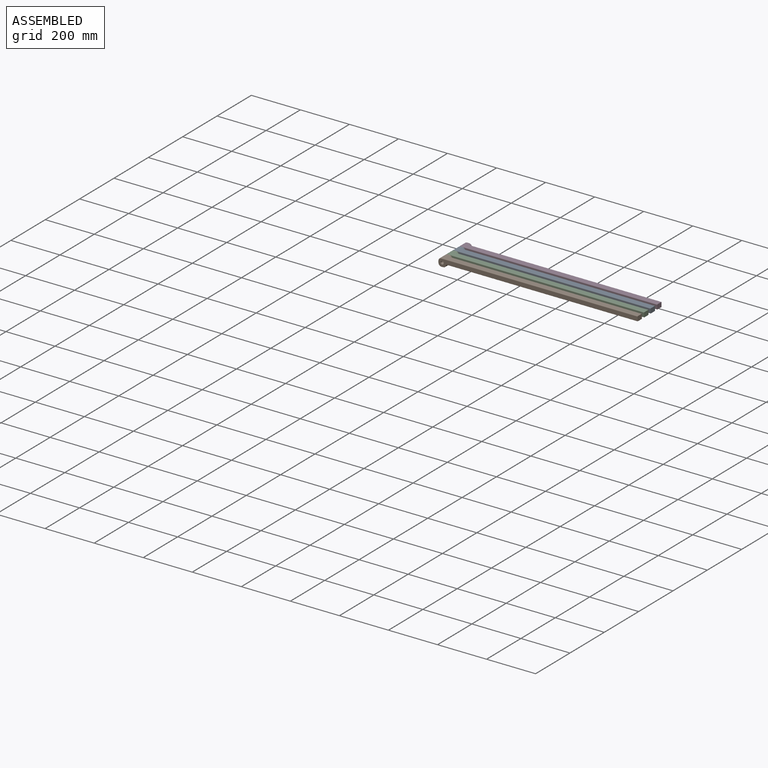
[diagram: assembled view]
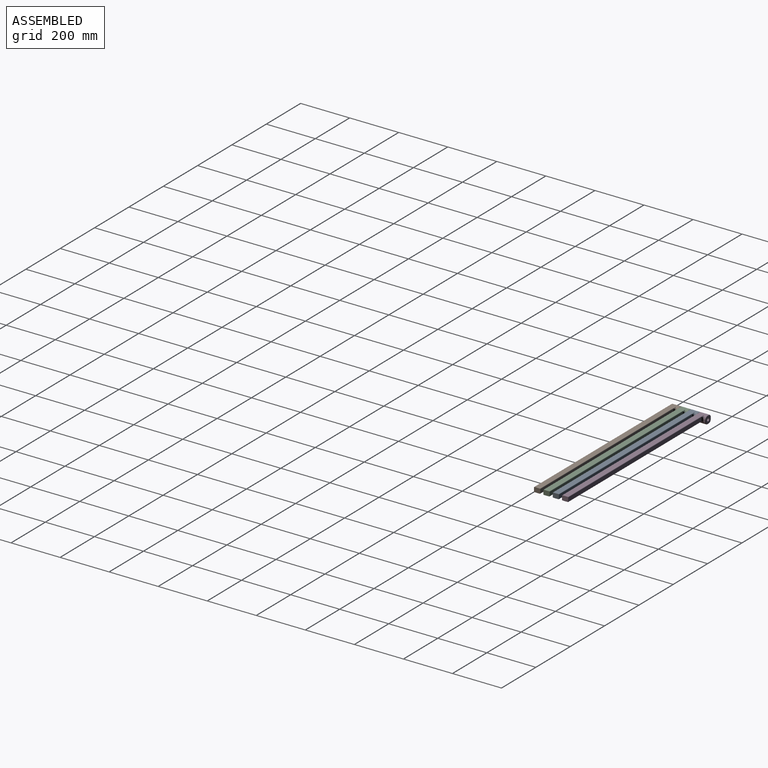
[diagram: assembled view, second angle]
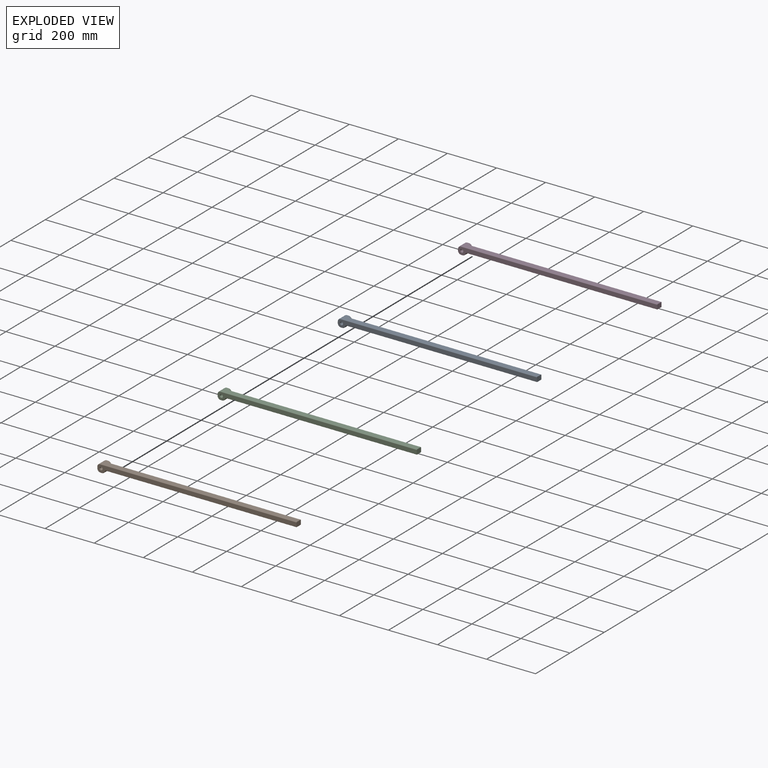
[diagram: exploded view]
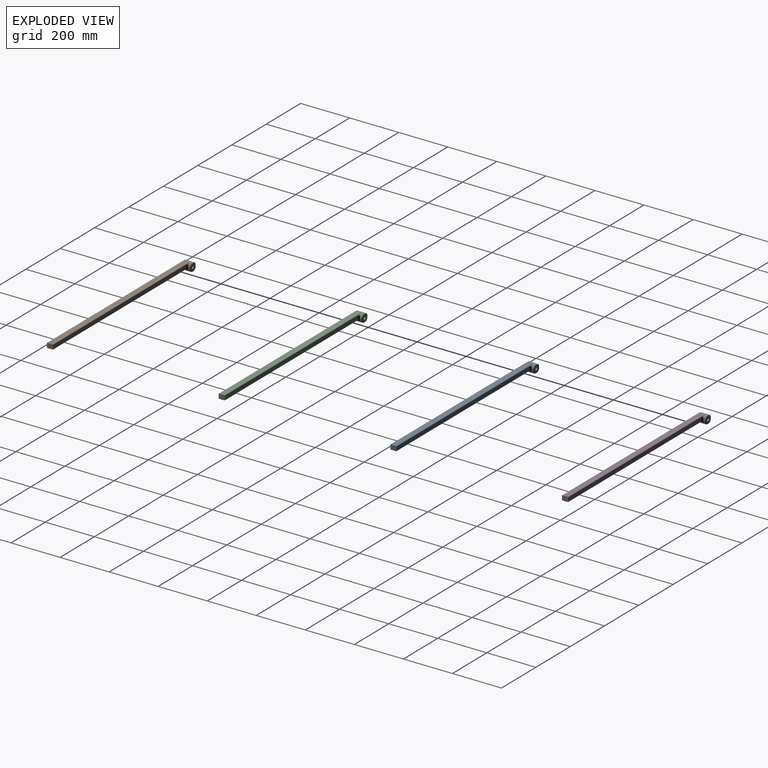
[diagram: exploded view, second angle]
ASSEMBLY  parts=4 mates=3
PART A: 37 faces, bbox 814.3x38.6x34.3 mm
  f0: plane 800.57x35.39mm, normal (0,0,1), area 17876.1mm2, adj f8,f11,f13,f14,f27,f28,f36
  f1: cylinder r=1.59mm len=775.79mm, axis (-1,0,0), area 1934.5mm2, adj f3,f11,f12,f26
  f2: plane 6.35x4.92mm, normal (1,0,0), area 30.3mm2, adj f10,f19,f20,f27,f33
  f3: plane 811.21x28.58mm, normal (0,-1,0), area 13042.9mm2, adj f1,f7,f11,f13,f21,f22,f23,f24
  f4: plane 774.7x15.88mm, normal (0,1,0), area 12298.4mm2, adj f11,f14,f15,f20
  f5: plane 34.93x6.35mm, normal (-1,0,0), area 221.8mm2, adj f8,f9,f22,f32
  f6: plane 34.93x6.35mm, normal (0,0,-1), area 221.8mm2, adj f9,f10,f24,f29
  f7: cylinder r=6.35mm len=38.1mm, axis (0,-1,0), area 1520.1mm2, adj f3,f16
  f8: cylinder r=12.7mm len=34.93mm, axis (0,-1,0), area 696.7mm2, adj f0,f5,f21,f34
  f9: cylinder r=12.7mm len=34.93mm, axis (0,1,0), area 696.7mm2, adj f5,f6,f23,f30
  f10: cylinder r=12.7mm len=34.93mm, axis (0,-1,0), area 584mm2, adj f2,f6,f17,f18,f25,f31
  f11: plane 25.4x19.05mm, normal (1,0,0), area 481.7mm2, adj f0,f1,f3,f4,f12,f13,f14,f15
  f12: plane 775.79x22.23mm, normal (0,0,-1), area 17241.9mm2, adj f1,f11,f15,f17
  f13: cylinder r=1.59mm len=800.1mm, axis (1,0,0), area 1995.2mm2, adj f0,f3,f11,f21
  f14: cylinder r=1.59mm len=774.7mm, axis (-1,0,0), area 1931.8mm2, adj f0,f4,f11,f28
  f15: cylinder r=1.59mm len=775.79mm, axis (1,0,0), area 1933mm2, adj f4,f11,f12,f18,f19
  f16: plane 28.58x28.58mm, normal (0,1,0), area 583.9mm2, adj f7,f29,f30,f31,f32,f33,f34,f35
  f17: cylinder r=6.35mm len=22.23mm, axis (0,-1,0), area 173.7mm2, adj f10,f12,f18,f26
  f18: bspline ~8.26x7.08mm, area 41.3mm2, adj f10,f15,f17,f19
  f19: torus R=7.94mm, axis (1,0,0), area 7.8mm2, adj f2,f15,f18,f20
  f20: cylinder r=6.35mm len=15.88mm, axis (0,0,1), area 102.9mm2, adj f2,f4,f19,f28
  f21: torus R=11.11mm, axis (0,-1,0), area 47.5mm2, adj f3,f8,f13,f22
  f22: cylinder r=1.59mm len=6.35mm, axis (0,0,1), area 15.8mm2, adj f3,f5,f21,f23
  f23: torus R=11.11mm, axis (0,-1,0), area 47.5mm2, adj f3,f9,f22,f24
  f24: cylinder r=1.59mm len=6.35mm, axis (-1,0,0), area 15.8mm2, adj f3,f6,f23,f25
  f25: torus R=11.11mm, axis (0,-1,0), area 37.2mm2, adj f3,f10,f24,f26
  f26: torus R=7.94mm, axis (0,-1,0), area 21.3mm2, adj f1,f3,f17,f25
  f27: cylinder r=12.7mm len=12.7mm, axis (0,1,0), area 95mm2, adj f0,f2,f28,f35
  f28: bspline ~19.05x12.7mm, area 156.7mm2, adj f0,f14,f20,f27
  f29: cylinder r=1.59mm len=6.35mm, axis (-1,0,0), area 15.8mm2, adj f6,f16,f30,f31
  f30: torus R=11.11mm, axis (0,1,0), area 47.5mm2, adj f9,f16,f29,f32
  f31: torus R=11.11mm, axis (0,1,0), area 47.5mm2, adj f10,f16,f29,f33
  f32: cylinder r=1.59mm len=6.35mm, axis (0,0,1), area 15.8mm2, adj f5,f16,f30,f34
  f33: cylinder r=1.59mm len=6.35mm, axis (0,0,1), area 15.8mm2, adj f2,f16,f31,f35
  f34: torus R=11.11mm, axis (0,1,0), area 47.5mm2, adj f8,f16,f32,f36
  f35: torus R=11.11mm, axis (0,1,0), area 47.5mm2, adj f16,f27,f33,f36
  f36: cylinder r=1.59mm len=6.35mm, axis (1,0,0), area 15.8mm2, adj f0,f16,f34,f35
PART B: same geometry as A
PART C: same geometry as A
PART D: same geometry as A
PLACE A t=(-299.62,-66.87,-186.45)mm
PLACE B t=(-299.62,-143.07,-186.45)mm
PLACE C t=(-299.62,-104.97,-186.45)mm
PLACE D t=(-299.62,-28.77,-186.45)mm
MATE revolute C.f7 <-> B.f7  axis (0,-1,0) through (-283.75,-130.37,-202.32)mm
MATE revolute C.f7 <-> A.f7  axis (0,1,0) through (-283.75,-92.27,-202.32)mm
MATE revolute D.f7 <-> A.f7  axis (0,-1,0) through (-283.75,-54.17,-202.32)mm
